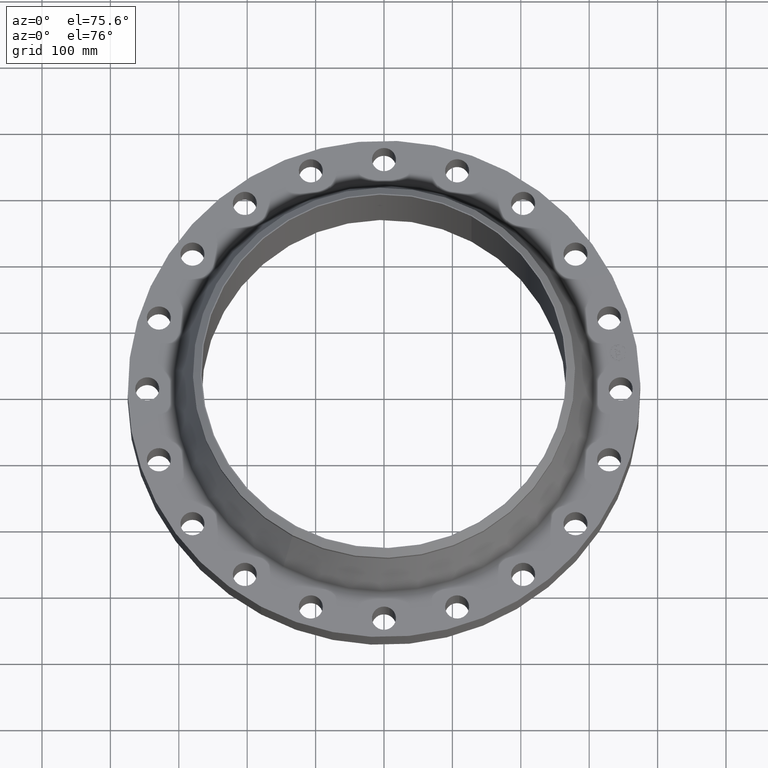
[diagram: clean part render]
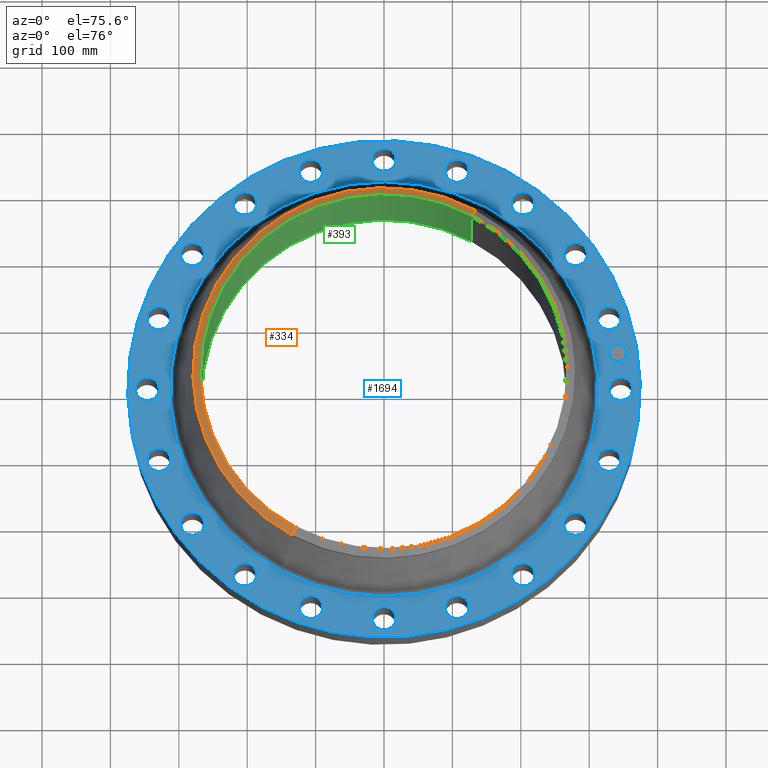
[diagram: same view with three faces highlighted in distinct colors, each labeled with its STEP entity id]
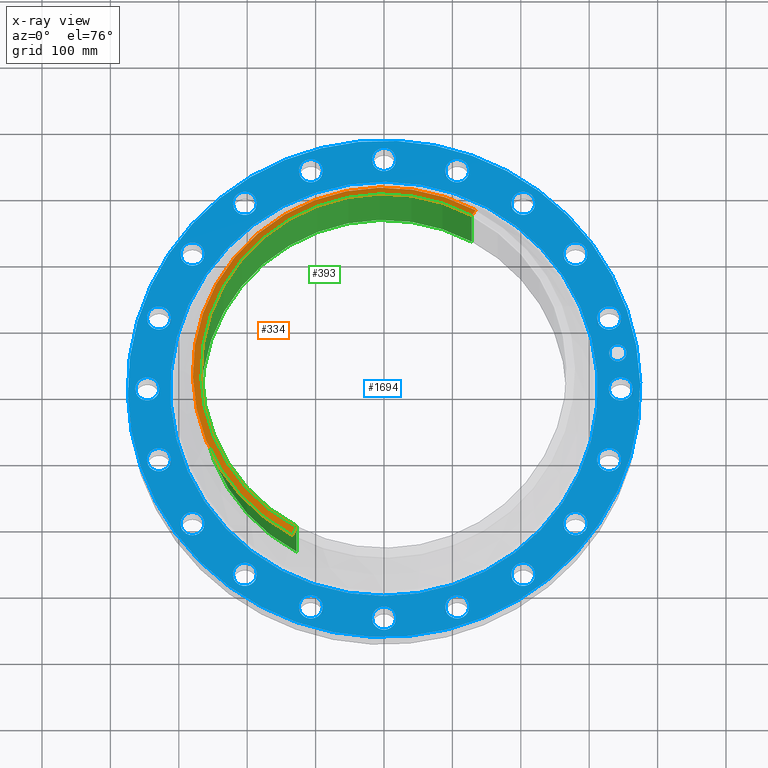
[diagram: x-ray of the same camera — body ghosted, the three highlighted faces saturated]
A machine part, auxiliary view with three faces highlighted in distinct colors.
The next image is the same camera in x-ray (body ghosted, the three faces saturated) — at least one of them is partly hidden behind the body in this view.
Their STEP definitions:

[orange] entity #334 — the highlighted conical surface has half-angle 52.5 deg.
#282=AXIS2_PLACEMENT_3D('Circle Axis2P3D',#280,#281,$) ;
#295=AXIS2_PLACEMENT_3D('Cone Axis2P3D',#292,#293,#294) ;
#325=AXIS2_PLACEMENT_3D('Circle Axis2P3D',#323,#324,$) ;
#258=CARTESIAN_POINT('Vertex',(-5.27368092467,-9.65340818083,5.54429444278)) ;
#265=CARTESIAN_POINT('Vertex',(5.27368092467,9.65340818083,5.54429444278)) ;
#280=CARTESIAN_POINT('Axis2P3D Location',(0.,0.,5.54429444278)) ;
#292=CARTESIAN_POINT('Axis2P3D Location',(0.,0.,5.88000000002)) ;
#297=CARTESIAN_POINT('Line Origine',(5.1688065881,9.46143699542,5.7121472214)) ;
#301=CARTESIAN_POINT('Vertex',(5.06393225153,9.26946581,5.88000000002)) ;
#308=CARTESIAN_POINT('Vertex',(-5.06393225153,-9.26946581,5.88000000002)) ;
#311=CARTESIAN_POINT('Line Origine',(-5.1688065881,-9.46143699542,5.7121472214)) ;
#323=CARTESIAN_POINT('Axis2P3D Location',(0.,0.,5.88000000002)) ;
#281=DIRECTION('Axis2P3D Direction',(0.,0.,-0.0393700787402)) ;
#293=DIRECTION('Axis2P3D Direction',(-0.,-0.,-0.0393700787402)) ;
#294=DIRECTION('Axis2P3D XDirection',(-0.0188750212049,-0.0345504945626,0.)) ;
#298=DIRECTION('Vector Direction',(0.014974561121,0.02741075027,-0.023966985394)) ;
#312=DIRECTION('Vector Direction',(-0.014974561121,-0.02741075027,-0.023966985394)) ;
#324=DIRECTION('Axis2P3D Direction',(0.,-0.,-0.0393700787402)) ;
#299=VECTOR('Line Direction',#298,0.0393700787402) ;
#313=VECTOR('Line Direction',#312,0.0393700787402) ;
#329=ORIENTED_EDGE('',*,*,#315,.F.) ;
#330=ORIENTED_EDGE('',*,*,#327,.T.) ;
#331=ORIENTED_EDGE('',*,*,#303,.T.) ;
#332=ORIENTED_EDGE('',*,*,#284,.F.) ;
#334=ADVANCED_FACE('PartBody',(#333),#296,.T.) ;
#283=CIRCLE('generated circle',#282,11.) ;
#326=CIRCLE('generated circle',#325,10.5625) ;
#296=CONICAL_SURFACE('Cone',#295,10.5625,0.916297857297) ;
#284=EDGE_CURVE('',#259,#266,#283,.T.) ;
#303=EDGE_CURVE('',#302,#266,#300,.T.) ;
#315=EDGE_CURVE('',#309,#259,#314,.T.) ;
#327=EDGE_CURVE('',#309,#302,#326,.T.) ;
#328=EDGE_LOOP('',(#329,#330,#331,#332)) ;
#333=FACE_OUTER_BOUND('',#328,.T.) ;
#300=LINE('Line',#297,#299) ;
#314=LINE('Line',#311,#313) ;
#259=VERTEX_POINT('',#258) ;
#266=VERTEX_POINT('',#265) ;
#302=VERTEX_POINT('',#301) ;
#309=VERTEX_POINT('',#308) ;

[blue] entity #1694 — the highlighted planar face has unit normal (0, 0, -1).
#65=AXIS2_PLACEMENT_3D('Circle Axis2P3D',#63,#64,$) ;
#82=AXIS2_PLACEMENT_3D('Circle Axis2P3D',#80,#81,$) ;
#115=AXIS2_PLACEMENT_3D('Circle Axis2P3D',#113,#114,$) ;
#139=AXIS2_PLACEMENT_3D('Circle Axis2P3D',#137,#138,$) ;
#156=AXIS2_PLACEMENT_3D('Circle Axis2P3D',#154,#155,$) ;
#191=AXIS2_PLACEMENT_3D('Circle Axis2P3D',#189,#190,$) ;
#787=AXIS2_PLACEMENT_3D('Circle Axis2P3D',#785,#786,$) ;
#799=AXIS2_PLACEMENT_3D('Circle Axis2P3D',#797,#798,$) ;
#830=AXIS2_PLACEMENT_3D('Circle Axis2P3D',#828,#829,$) ;
#842=AXIS2_PLACEMENT_3D('Circle Axis2P3D',#840,#841,$) ;
#873=AXIS2_PLACEMENT_3D('Circle Axis2P3D',#871,#872,$) ;
#885=AXIS2_PLACEMENT_3D('Circle Axis2P3D',#883,#884,$) ;
#916=AXIS2_PLACEMENT_3D('Circle Axis2P3D',#914,#915,$) ;
#928=AXIS2_PLACEMENT_3D('Circle Axis2P3D',#926,#927,$) ;
#959=AXIS2_PLACEMENT_3D('Circle Axis2P3D',#957,#958,$) ;
#971=AXIS2_PLACEMENT_3D('Circle Axis2P3D',#969,#970,$) ;
#1002=AXIS2_PLACEMENT_3D('Circle Axis2P3D',#1000,#1001,$) ;
#1014=AXIS2_PLACEMENT_3D('Circle Axis2P3D',#1012,#1013,$) ;
#1045=AXIS2_PLACEMENT_3D('Circle Axis2P3D',#1043,#1044,$) ;
#1057=AXIS2_PLACEMENT_3D('Circle Axis2P3D',#1055,#1056,$) ;
#1088=AXIS2_PLACEMENT_3D('Circle Axis2P3D',#1086,#1087,$) ;
#1100=AXIS2_PLACEMENT_3D('Circle Axis2P3D',#1098,#1099,$) ;
#1131=AXIS2_PLACEMENT_3D('Circle Axis2P3D',#1129,#1130,$) ;
#1143=AXIS2_PLACEMENT_3D('Circle Axis2P3D',#1141,#1142,$) ;
#1174=AXIS2_PLACEMENT_3D('Circle Axis2P3D',#1172,#1173,$) ;
#1186=AXIS2_PLACEMENT_3D('Circle Axis2P3D',#1184,#1185,$) ;
#1217=AXIS2_PLACEMENT_3D('Circle Axis2P3D',#1215,#1216,$) ;
#1229=AXIS2_PLACEMENT_3D('Circle Axis2P3D',#1227,#1228,$) ;
#1260=AXIS2_PLACEMENT_3D('Circle Axis2P3D',#1258,#1259,$) ;
#1272=AXIS2_PLACEMENT_3D('Circle Axis2P3D',#1270,#1271,$) ;
#1303=AXIS2_PLACEMENT_3D('Circle Axis2P3D',#1301,#1302,$) ;
#1315=AXIS2_PLACEMENT_3D('Circle Axis2P3D',#1313,#1314,$) ;
#1346=AXIS2_PLACEMENT_3D('Circle Axis2P3D',#1344,#1345,$) ;
#1358=AXIS2_PLACEMENT_3D('Circle Axis2P3D',#1356,#1357,$) ;
#1389=AXIS2_PLACEMENT_3D('Circle Axis2P3D',#1387,#1388,$) ;
#1401=AXIS2_PLACEMENT_3D('Circle Axis2P3D',#1399,#1400,$) ;
#1432=AXIS2_PLACEMENT_3D('Circle Axis2P3D',#1430,#1431,$) ;
#1444=AXIS2_PLACEMENT_3D('Circle Axis2P3D',#1442,#1443,$) ;
#1475=AXIS2_PLACEMENT_3D('Circle Axis2P3D',#1473,#1474,$) ;
#1487=AXIS2_PLACEMENT_3D('Circle Axis2P3D',#1485,#1486,$) ;
#1518=AXIS2_PLACEMENT_3D('Circle Axis2P3D',#1516,#1517,$) ;
#1530=AXIS2_PLACEMENT_3D('Circle Axis2P3D',#1528,#1529,$) ;
#1561=AXIS2_PLACEMENT_3D('Circle Axis2P3D',#1559,#1560,$) ;
#1573=AXIS2_PLACEMENT_3D('Circle Axis2P3D',#1571,#1572,$) ;
#1586=AXIS2_PLACEMENT_3D('Plane Axis2P3D',#1583,#1584,#1585) ;
#1678=AXIS2_PLACEMENT_3D('Circle Axis2P3D',#1676,#1677,$) ;
#1687=AXIS2_PLACEMENT_3D('Circle Axis2P3D',#1685,#1686,$) ;
#46=CARTESIAN_POINT('Vertex',(13.0194680323,0.330803621638,1.81000000001)) ;
#60=CARTESIAN_POINT('Vertex',(14.2305319678,-0.330803621638,1.81000000001)) ;
#63=CARTESIAN_POINT('Axis2P3D Location',(13.6250000001,0.,1.81000000001)) ;
#80=CARTESIAN_POINT('Axis2P3D Location',(13.6250000001,0.,1.81000000001)) ;
#110=CARTESIAN_POINT('Vertex',(-7.07152669444,-12.9443427879,1.81000000001)) ;
#113=CARTESIAN_POINT('Axis2P3D Location',(0.,0.,1.81000000001)) ;
#117=CARTESIAN_POINT('Vertex',(7.07152669444,12.9443427879,1.81000000001)) ;
#137=CARTESIAN_POINT('Axis2P3D Location',(0.,0.,1.81000000001)) ;
#154=CARTESIAN_POINT('Axis2P3D Location',(0.,0.,1.81000000001)) ;
#158=CARTESIAN_POINT('Vertex',(5.90039045652,10.800592284,1.81000000001)) ;
#160=CARTESIAN_POINT('Vertex',(-5.90039045652,-10.800592284,1.81000000001)) ;
#189=CARTESIAN_POINT('Axis2P3D Location',(0.,0.,1.81000000001)) ;
#775=CARTESIAN_POINT('Vertex',(-12.4844738517,3.70862393974,1.81000000001)) ;
#782=CARTESIAN_POINT('Vertex',(-13.4318162174,4.71208915701,1.81000000001)) ;
#785=CARTESIAN_POINT('Axis2P3D Location',(-12.9581450346,4.21035654838,1.81000000001)) ;
#797=CARTESIAN_POINT('Axis2P3D Location',(-12.9581450346,4.21035654838,1.81000000001)) ;
#818=CARTESIAN_POINT('Vertex',(10.7274123861,-7.3850255504,1.81000000001)) ;
#825=CARTESIAN_POINT('Vertex',(11.3183007107,-8.63212257463,1.81000000001)) ;
#828=CARTESIAN_POINT('Axis2P3D Location',(11.0228565484,-8.00857406252,1.81000000001)) ;
#840=CARTESIAN_POINT('Axis2P3D Location',(11.0228565484,-8.00857406252,1.81000000001)) ;
#861=CARTESIAN_POINT('Vertex',(-10.7274123861,7.3850255504,1.81000000001)) ;
#868=CARTESIAN_POINT('Vertex',(-11.3183007107,8.63212257463,1.81000000001)) ;
#871=CARTESIAN_POINT('Axis2P3D Location',(-11.0228565484,8.00857406252,1.81000000001)) ;
#883=CARTESIAN_POINT('Axis2P3D Location',(-11.0228565484,8.00857406252,1.81000000001)) ;
#904=CARTESIAN_POINT('Vertex',(7.92027705381,-10.3385294057,1.81000000001)) ;
#911=CARTESIAN_POINT('Vertex',(8.09687107122,-11.7071836911,1.81000000001)) ;
#914=CARTESIAN_POINT('Axis2P3D Location',(8.00857406252,-11.0228565484,1.81000000001)) ;
#926=CARTESIAN_POINT('Axis2P3D Location',(8.00857406252,-11.0228565484,1.81000000001)) ;
#947=CARTESIAN_POINT('Vertex',(-7.92027705381,10.3385294057,1.81000000001)) ;
#954=CARTESIAN_POINT('Vertex',(-8.09687107122,11.7071836911,1.81000000001)) ;
#957=CARTESIAN_POINT('Axis2P3D Location',(-8.00857406252,11.0228565484,1.81000000001)) ;
#969=CARTESIAN_POINT('Axis2P3D Location',(-8.00857406252,11.0228565484,1.81000000001)) ;
#990=CARTESIAN_POINT('Vertex',(4.33784981969,-12.28002597,1.81000000001)) ;
#997=CARTESIAN_POINT('Vertex',(4.08286327706,-13.6362640992,1.81000000001)) ;
#1000=CARTESIAN_POINT('Axis2P3D Location',(4.21035654838,-12.9581450346,1.81000000001)) ;
#1012=CARTESIAN_POINT('Axis2P3D Location',(4.21035654838,-12.9581450346,1.81000000001)) ;
#1033=CARTESIAN_POINT('Vertex',(-4.33784981969,12.28002597,1.81000000001)) ;
#1040=CARTESIAN_POINT('Vertex',(-4.08286327706,13.6362640992,1.81000000001)) ;
#1043=CARTESIAN_POINT('Axis2P3D Location',(-4.21035654838,12.9581450346,1.81000000001)) ;
#1055=CARTESIAN_POINT('Axis2P3D Location',(-4.21035654838,12.9581450346,1.81000000001)) ;
#1076=CARTESIAN_POINT('Vertex',(0.330803621638,-13.0194680323,1.81000000001)) ;
#1083=CARTESIAN_POINT('Vertex',(-0.330803621638,-14.2305319678,1.81000000001)) ;
#1086=CARTESIAN_POINT('Axis2P3D Location',(3.85964837404E-015,-13.6250000001,1.81000000001)) ;
#1098=CARTESIAN_POINT('Axis2P3D Location',(3.85964837404E-015,-13.6250000001,1.81000000001)) ;
#1119=CARTESIAN_POINT('Vertex',(-0.330803621638,13.0194680323,1.81000000001)) ;
#1126=CARTESIAN_POINT('Vertex',(0.330803621638,14.2305319678,1.81000000001)) ;
#1129=CARTESIAN_POINT('Axis2P3D Location',(-1.46043028642E-014,13.6250000001,1.81000000001)) ;
#1141=CARTESIAN_POINT('Axis2P3D Location',(-1.46043028642E-014,13.6250000001,1.81000000001)) ;
#1162=CARTESIAN_POINT('Vertex',(-3.70862393974,-12.4844738517,1.81000000001)) ;
#1169=CARTESIAN_POINT('Vertex',(-4.71208915701,-13.4318162174,1.81000000001)) ;
#1172=CARTESIAN_POINT('Axis2P3D Location',(-4.21035654838,-12.9581450346,1.81000000001)) ;
#1184=CARTESIAN_POINT('Axis2P3D Location',(-4.21035654838,-12.9581450346,1.81000000001)) ;
#1205=CARTESIAN_POINT('Vertex',(3.70862393974,12.4844738517,1.81000000001)) ;
#1212=CARTESIAN_POINT('Vertex',(4.71208915701,13.4318162174,1.81000000001)) ;
#1215=CARTESIAN_POINT('Axis2P3D Location',(4.21035654838,12.9581450346,1.81000000001)) ;
#1227=CARTESIAN_POINT('Axis2P3D Location',(4.21035654838,12.9581450346,1.81000000001)) ;
#1248=CARTESIAN_POINT('Vertex',(-7.3850255504,-10.7274123861,1.81000000001)) ;
#1255=CARTESIAN_POINT('Vertex',(-8.63212257463,-11.3183007107,1.81000000001)) ;
#1258=CARTESIAN_POINT('Axis2P3D Location',(-8.00857406252,-11.0228565484,1.81000000001)) ;
#1270=CARTESIAN_POINT('Axis2P3D Location',(-8.00857406252,-11.0228565484,1.81000000001)) ;
#1291=CARTESIAN_POINT('Vertex',(7.3850255504,10.7274123861,1.81000000001)) ;
#1298=CARTESIAN_POINT('Vertex',(8.63212257463,11.3183007107,1.81000000001)) ;
#1301=CARTESIAN_POINT('Axis2P3D Location',(8.00857406252,11.0228565484,1.81000000001)) ;
#1313=CARTESIAN_POINT('Axis2P3D Location',(8.00857406252,11.0228565484,1.81000000001)) ;
#1334=CARTESIAN_POINT('Vertex',(-10.3385294057,-7.92027705381,1.81000000001)) ;
#1341=CARTESIAN_POINT('Vertex',(-11.7071836911,-8.09687107122,1.81000000001)) ;
#1344=CARTESIAN_POINT('Axis2P3D Location',(-11.0228565484,-8.00857406252,1.81000000001)) ;
#1356=CARTESIAN_POINT('Axis2P3D Location',(-11.0228565484,-8.00857406252,1.81000000001)) ;
#1377=CARTESIAN_POINT('Vertex',(10.3385294057,7.92027705381,1.81000000001)) ;
#1384=CARTESIAN_POINT('Vertex',(11.7071836911,8.09687107122,1.81000000001)) ;
#1387=CARTESIAN_POINT('Axis2P3D Location',(11.0228565484,8.00857406252,1.81000000001)) ;
#1399=CARTESIAN_POINT('Axis2P3D Location',(11.0228565484,8.00857406252,1.81000000001)) ;
#1420=CARTESIAN_POINT('Vertex',(-12.28002597,-4.33784981969,1.81000000001)) ;
#1427=CARTESIAN_POINT('Vertex',(-13.6362640992,-4.08286327706,1.81000000001)) ;
#1430=CARTESIAN_POINT('Axis2P3D Location',(-12.9581450346,-4.21035654838,1.81000000001)) ;
#1442=CARTESIAN_POINT('Axis2P3D Location',(-12.9581450346,-4.21035654838,1.81000000001)) ;
#1463=CARTESIAN_POINT('Vertex',(12.28002597,4.33784981969,1.81000000001)) ;
#1470=CARTESIAN_POINT('Vertex',(13.6362640992,4.08286327706,1.81000000001)) ;
#1473=CARTESIAN_POINT('Axis2P3D Location',(12.9581450346,4.21035654838,1.81000000001)) ;
#1485=CARTESIAN_POINT('Axis2P3D Location',(12.9581450346,4.21035654838,1.81000000001)) ;
#1506=CARTESIAN_POINT('Vertex',(-13.0194680323,-0.330803621638,1.81000000001)) ;
#1513=CARTESIAN_POINT('Vertex',(-14.2305319678,0.330803621638,1.81000000001)) ;
#1516=CARTESIAN_POINT('Axis2P3D Location',(-13.6250000001,-7.71929674808E-015,1.81000000001)) ;
#1528=CARTESIAN_POINT('Axis2P3D Location',(-13.6250000001,-7.71929674808E-015,1.81000000001)) ;
#1549=CARTESIAN_POINT('Vertex',(12.4844738517,-3.70862393974,1.81000000001)) ;
#1556=CARTESIAN_POINT('Vertex',(13.4318162174,-4.71208915701,1.81000000001)) ;
#1559=CARTESIAN_POINT('Axis2P3D Location',(12.9581450346,-4.21035654838,1.81000000001)) ;
#1571=CARTESIAN_POINT('Axis2P3D Location',(12.9581450346,-4.21035654838,1.81000000001)) ;
#1583=CARTESIAN_POINT('Axis2P3D Location',(0.,14.7500000001,1.81000000001)) ;
#1676=CARTESIAN_POINT('Axis2P3D Location',(13.4572536407,2.13141958618,1.81000000001)) ;
#1680=CARTESIAN_POINT('Vertex',(13.3790365874,2.62526262459,1.81000000001)) ;
#1682=CARTESIAN_POINT('Vertex',(13.5354706939,1.63757654778,1.81000000001)) ;
#1685=CARTESIAN_POINT('Axis2P3D Location',(13.4572536407,2.13141958618,1.81000000001)) ;
#64=DIRECTION('Axis2P3D Direction',(0.,-0.,-0.0393700787402)) ;
#81=DIRECTION('Axis2P3D Direction',(0.,-0.,-0.0393700787402)) ;
#114=DIRECTION('Axis2P3D Direction',(0.,0.,-0.0393700787402)) ;
#138=DIRECTION('Axis2P3D Direction',(0.,0.,-0.0393700787402)) ;
#155=DIRECTION('Axis2P3D Direction',(0.,0.,-0.0393700787402)) ;
#190=DIRECTION('Axis2P3D Direction',(0.,0.,-0.0393700787402)) ;
#786=DIRECTION('Axis2P3D Direction',(0.,0.,-0.0393700787402)) ;
#798=DIRECTION('Axis2P3D Direction',(0.,0.,-0.0393700787402)) ;
#829=DIRECTION('Axis2P3D Direction',(0.,-0.,-0.0393700787402)) ;
#841=DIRECTION('Axis2P3D Direction',(0.,-0.,-0.0393700787402)) ;
#872=DIRECTION('Axis2P3D Direction',(0.,0.,-0.0393700787402)) ;
#884=DIRECTION('Axis2P3D Direction',(0.,0.,-0.0393700787402)) ;
#915=DIRECTION('Axis2P3D Direction',(0.,-0.,-0.0393700787402)) ;
#927=DIRECTION('Axis2P3D Direction',(0.,-0.,-0.0393700787402)) ;
#958=DIRECTION('Axis2P3D Direction',(0.,0.,-0.0393700787402)) ;
#970=DIRECTION('Axis2P3D Direction',(0.,0.,-0.0393700787402)) ;
#1001=DIRECTION('Axis2P3D Direction',(0.,-0.,-0.0393700787402)) ;
#1013=DIRECTION('Axis2P3D Direction',(0.,-0.,-0.0393700787402)) ;
#1044=DIRECTION('Axis2P3D Direction',(0.,0.,-0.0393700787402)) ;
#1056=DIRECTION('Axis2P3D Direction',(0.,0.,-0.0393700787402)) ;
#1087=DIRECTION('Axis2P3D Direction',(0.,-0.,-0.0393700787402)) ;
#1099=DIRECTION('Axis2P3D Direction',(0.,-0.,-0.0393700787402)) ;
#1130=DIRECTION('Axis2P3D Direction',(0.,0.,-0.0393700787402)) ;
#1142=DIRECTION('Axis2P3D Direction',(0.,0.,-0.0393700787402)) ;
#1173=DIRECTION('Axis2P3D Direction',(-0.,0.,-0.0393700787402)) ;
#1185=DIRECTION('Axis2P3D Direction',(-0.,0.,-0.0393700787402)) ;
#1216=DIRECTION('Axis2P3D Direction',(0.,0.,-0.0393700787402)) ;
#1228=DIRECTION('Axis2P3D Direction',(0.,0.,-0.0393700787402)) ;
#1259=DIRECTION('Axis2P3D Direction',(-0.,0.,-0.0393700787402)) ;
#1271=DIRECTION('Axis2P3D Direction',(-0.,0.,-0.0393700787402)) ;
#1302=DIRECTION('Axis2P3D Direction',(0.,0.,-0.0393700787402)) ;
#1314=DIRECTION('Axis2P3D Direction',(0.,0.,-0.0393700787402)) ;
#1345=DIRECTION('Axis2P3D Direction',(-0.,0.,-0.0393700787402)) ;
#1357=DIRECTION('Axis2P3D Direction',(-0.,0.,-0.0393700787402)) ;
#1388=DIRECTION('Axis2P3D Direction',(0.,0.,-0.0393700787402)) ;
#1400=DIRECTION('Axis2P3D Direction',(0.,0.,-0.0393700787402)) ;
#1431=DIRECTION('Axis2P3D Direction',(-0.,0.,-0.0393700787402)) ;
#1443=DIRECTION('Axis2P3D Direction',(-0.,0.,-0.0393700787402)) ;
#1474=DIRECTION('Axis2P3D Direction',(0.,0.,-0.0393700787402)) ;
#1486=DIRECTION('Axis2P3D Direction',(0.,0.,-0.0393700787402)) ;
#1517=DIRECTION('Axis2P3D Direction',(-0.,0.,-0.0393700787402)) ;
#1529=DIRECTION('Axis2P3D Direction',(-0.,0.,-0.0393700787402)) ;
#1560=DIRECTION('Axis2P3D Direction',(0.,-0.,-0.0393700787402)) ;
#1572=DIRECTION('Axis2P3D Direction',(0.,-0.,-0.0393700787402)) ;
#1584=DIRECTION('Axis2P3D Direction',(0.,0.,-0.0393700787402)) ;
#1585=DIRECTION('Axis2P3D XDirection',(0.0393700787402,0.,0.)) ;
#1677=DIRECTION('Axis2P3D Direction',(0.,0.,-0.0393700787402)) ;
#1686=DIRECTION('Axis2P3D Direction',(0.,0.,-0.0393700787402)) ;
#1589=ORIENTED_EDGE('',*,*,#141,.F.) ;
#1590=ORIENTED_EDGE('',*,*,#119,.F.) ;
#1593=ORIENTED_EDGE('',*,*,#67,.T.) ;
#1594=ORIENTED_EDGE('',*,*,#84,.T.) ;
#1597=ORIENTED_EDGE('',*,*,#193,.T.) ;
#1598=ORIENTED_EDGE('',*,*,#162,.T.) ;
#1601=ORIENTED_EDGE('',*,*,#1575,.T.) ;
#1602=ORIENTED_EDGE('',*,*,#1563,.T.) ;
#1605=ORIENTED_EDGE('',*,*,#844,.T.) ;
#1606=ORIENTED_EDGE('',*,*,#832,.T.) ;
#1609=ORIENTED_EDGE('',*,*,#930,.T.) ;
#1610=ORIENTED_EDGE('',*,*,#918,.T.) ;
#1613=ORIENTED_EDGE('',*,*,#1016,.T.) ;
#1614=ORIENTED_EDGE('',*,*,#1004,.T.) ;
#1617=ORIENTED_EDGE('',*,*,#1102,.T.) ;
#1618=ORIENTED_EDGE('',*,*,#1090,.T.) ;
#1621=ORIENTED_EDGE('',*,*,#1188,.T.) ;
#1622=ORIENTED_EDGE('',*,*,#1176,.T.) ;
#1625=ORIENTED_EDGE('',*,*,#1274,.T.) ;
#1626=ORIENTED_EDGE('',*,*,#1262,.T.) ;
#1629=ORIENTED_EDGE('',*,*,#1360,.T.) ;
#1630=ORIENTED_EDGE('',*,*,#1348,.T.) ;
#1633=ORIENTED_EDGE('',*,*,#1446,.T.) ;
#1634=ORIENTED_EDGE('',*,*,#1434,.T.) ;
#1637=ORIENTED_EDGE('',*,*,#1532,.T.) ;
#1638=ORIENTED_EDGE('',*,*,#1520,.T.) ;
#1641=ORIENTED_EDGE('',*,*,#801,.T.) ;
#1642=ORIENTED_EDGE('',*,*,#789,.T.) ;
#1645=ORIENTED_EDGE('',*,*,#887,.T.) ;
#1646=ORIENTED_EDGE('',*,*,#875,.T.) ;
#1649=ORIENTED_EDGE('',*,*,#973,.T.) ;
#1650=ORIENTED_EDGE('',*,*,#961,.T.) ;
#1653=ORIENTED_EDGE('',*,*,#1059,.T.) ;
#1654=ORIENTED_EDGE('',*,*,#1047,.T.) ;
#1657=ORIENTED_EDGE('',*,*,#1145,.T.) ;
#1658=ORIENTED_EDGE('',*,*,#1133,.T.) ;
#1661=ORIENTED_EDGE('',*,*,#1231,.T.) ;
#1662=ORIENTED_EDGE('',*,*,#1219,.T.) ;
#1665=ORIENTED_EDGE('',*,*,#1317,.T.) ;
#1666=ORIENTED_EDGE('',*,*,#1305,.T.) ;
#1669=ORIENTED_EDGE('',*,*,#1403,.T.) ;
#1670=ORIENTED_EDGE('',*,*,#1391,.T.) ;
#1673=ORIENTED_EDGE('',*,*,#1489,.T.) ;
#1674=ORIENTED_EDGE('',*,*,#1477,.T.) ;
#1691=ORIENTED_EDGE('',*,*,#1684,.T.) ;
#1692=ORIENTED_EDGE('',*,*,#1689,.T.) ;
#1595=FACE_BOUND('',#1592,.T.) ;
#1599=FACE_BOUND('',#1596,.T.) ;
#1603=FACE_BOUND('',#1600,.T.) ;
#1607=FACE_BOUND('',#1604,.T.) ;
#1611=FACE_BOUND('',#1608,.T.) ;
#1615=FACE_BOUND('',#1612,.T.) ;
#1619=FACE_BOUND('',#1616,.T.) ;
#1623=FACE_BOUND('',#1620,.T.) ;
#1627=FACE_BOUND('',#1624,.T.) ;
#1631=FACE_BOUND('',#1628,.T.) ;
#1635=FACE_BOUND('',#1632,.T.) ;
#1639=FACE_BOUND('',#1636,.T.) ;
#1643=FACE_BOUND('',#1640,.T.) ;
#1647=FACE_BOUND('',#1644,.T.) ;
#1651=FACE_BOUND('',#1648,.T.) ;
#1655=FACE_BOUND('',#1652,.T.) ;
#1659=FACE_BOUND('',#1656,.T.) ;
#1663=FACE_BOUND('',#1660,.T.) ;
#1667=FACE_BOUND('',#1664,.T.) ;
#1671=FACE_BOUND('',#1668,.T.) ;
#1675=FACE_BOUND('',#1672,.T.) ;
#1693=FACE_BOUND('',#1690,.T.) ;
#1694=ADVANCED_FACE('PartBody',(#1591,#1595,#1599,#1603,#1607,#1611,#1615,#1619,#1623,#1627,#1631,#1635,#1639,#1643,#1647,#1651,#1655,#1659,#1663,#1667,#1671,#1675,#1693),#1587,.F.) ;
#66=CIRCLE('generated circle',#65,0.690000000003) ;
#83=CIRCLE('generated circle',#82,0.690000000003) ;
#116=CIRCLE('generated circle',#115,14.7500000001) ;
#140=CIRCLE('generated circle',#139,14.7500000001) ;
#157=CIRCLE('generated circle',#156,12.3072093191) ;
#192=CIRCLE('generated circle',#191,12.3072093191) ;
#788=CIRCLE('generated circle',#787,0.690000000003) ;
#800=CIRCLE('generated circle',#799,0.690000000003) ;
#831=CIRCLE('generated circle',#830,0.690000000003) ;
#843=CIRCLE('generated circle',#842,0.690000000003) ;
#874=CIRCLE('generated circle',#873,0.690000000003) ;
#886=CIRCLE('generated circle',#885,0.690000000003) ;
#917=CIRCLE('generated circle',#916,0.690000000003) ;
#929=CIRCLE('generated circle',#928,0.690000000003) ;
#960=CIRCLE('generated circle',#959,0.690000000003) ;
#972=CIRCLE('generated circle',#971,0.690000000003) ;
#1003=CIRCLE('generated circle',#1002,0.690000000003) ;
#1015=CIRCLE('generated circle',#1014,0.690000000003) ;
#1046=CIRCLE('generated circle',#1045,0.690000000003) ;
#1058=CIRCLE('generated circle',#1057,0.690000000003) ;
#1089=CIRCLE('generated circle',#1088,0.690000000003) ;
#1101=CIRCLE('generated circle',#1100,0.690000000003) ;
#1132=CIRCLE('generated circle',#1131,0.690000000003) ;
#1144=CIRCLE('generated circle',#1143,0.690000000003) ;
#1175=CIRCLE('generated circle',#1174,0.690000000003) ;
#1187=CIRCLE('generated circle',#1186,0.690000000003) ;
#1218=CIRCLE('generated circle',#1217,0.690000000003) ;
#1230=CIRCLE('generated circle',#1229,0.690000000003) ;
#1261=CIRCLE('generated circle',#1260,0.690000000003) ;
#1273=CIRCLE('generated circle',#1272,0.690000000003) ;
#1304=CIRCLE('generated circle',#1303,0.690000000003) ;
#1316=CIRCLE('generated circle',#1315,0.690000000003) ;
#1347=CIRCLE('generated circle',#1346,0.690000000003) ;
#1359=CIRCLE('generated circle',#1358,0.690000000003) ;
#1390=CIRCLE('generated circle',#1389,0.690000000003) ;
#1402=CIRCLE('generated circle',#1401,0.690000000003) ;
#1433=CIRCLE('generated circle',#1432,0.690000000003) ;
#1445=CIRCLE('generated circle',#1444,0.690000000003) ;
#1476=CIRCLE('generated circle',#1475,0.690000000003) ;
#1488=CIRCLE('generated circle',#1487,0.690000000003) ;
#1519=CIRCLE('generated circle',#1518,0.690000000003) ;
#1531=CIRCLE('generated circle',#1530,0.690000000003) ;
#1562=CIRCLE('generated circle',#1561,0.690000000003) ;
#1574=CIRCLE('generated circle',#1573,0.690000000003) ;
#1679=CIRCLE('generated circle',#1678,0.499998853999) ;
#1688=CIRCLE('generated circle',#1687,0.499998853999) ;
#67=EDGE_CURVE('',#47,#61,#66,.T.) ;
#84=EDGE_CURVE('',#61,#47,#83,.T.) ;
#119=EDGE_CURVE('',#111,#118,#116,.T.) ;
#141=EDGE_CURVE('',#118,#111,#140,.T.) ;
#162=EDGE_CURVE('',#159,#161,#157,.T.) ;
#193=EDGE_CURVE('',#161,#159,#192,.T.) ;
#789=EDGE_CURVE('',#776,#783,#788,.T.) ;
#801=EDGE_CURVE('',#783,#776,#800,.T.) ;
#832=EDGE_CURVE('',#819,#826,#831,.T.) ;
#844=EDGE_CURVE('',#826,#819,#843,.T.) ;
#875=EDGE_CURVE('',#862,#869,#874,.T.) ;
#887=EDGE_CURVE('',#869,#862,#886,.T.) ;
#918=EDGE_CURVE('',#905,#912,#917,.T.) ;
#930=EDGE_CURVE('',#912,#905,#929,.T.) ;
#961=EDGE_CURVE('',#948,#955,#960,.T.) ;
#973=EDGE_CURVE('',#955,#948,#972,.T.) ;
#1004=EDGE_CURVE('',#991,#998,#1003,.T.) ;
#1016=EDGE_CURVE('',#998,#991,#1015,.T.) ;
#1047=EDGE_CURVE('',#1034,#1041,#1046,.T.) ;
#1059=EDGE_CURVE('',#1041,#1034,#1058,.T.) ;
#1090=EDGE_CURVE('',#1077,#1084,#1089,.T.) ;
#1102=EDGE_CURVE('',#1084,#1077,#1101,.T.) ;
#1133=EDGE_CURVE('',#1120,#1127,#1132,.T.) ;
#1145=EDGE_CURVE('',#1127,#1120,#1144,.T.) ;
#1176=EDGE_CURVE('',#1163,#1170,#1175,.T.) ;
#1188=EDGE_CURVE('',#1170,#1163,#1187,.T.) ;
#1219=EDGE_CURVE('',#1206,#1213,#1218,.T.) ;
#1231=EDGE_CURVE('',#1213,#1206,#1230,.T.) ;
#1262=EDGE_CURVE('',#1249,#1256,#1261,.T.) ;
#1274=EDGE_CURVE('',#1256,#1249,#1273,.T.) ;
#1305=EDGE_CURVE('',#1292,#1299,#1304,.T.) ;
#1317=EDGE_CURVE('',#1299,#1292,#1316,.T.) ;
#1348=EDGE_CURVE('',#1335,#1342,#1347,.T.) ;
#1360=EDGE_CURVE('',#1342,#1335,#1359,.T.) ;
#1391=EDGE_CURVE('',#1378,#1385,#1390,.T.) ;
#1403=EDGE_CURVE('',#1385,#1378,#1402,.T.) ;
#1434=EDGE_CURVE('',#1421,#1428,#1433,.T.) ;
#1446=EDGE_CURVE('',#1428,#1421,#1445,.T.) ;
#1477=EDGE_CURVE('',#1464,#1471,#1476,.T.) ;
#1489=EDGE_CURVE('',#1471,#1464,#1488,.T.) ;
#1520=EDGE_CURVE('',#1507,#1514,#1519,.T.) ;
#1532=EDGE_CURVE('',#1514,#1507,#1531,.T.) ;
#1563=EDGE_CURVE('',#1550,#1557,#1562,.T.) ;
#1575=EDGE_CURVE('',#1557,#1550,#1574,.T.) ;
#1684=EDGE_CURVE('',#1681,#1683,#1679,.T.) ;
#1689=EDGE_CURVE('',#1683,#1681,#1688,.T.) ;
#1588=EDGE_LOOP('',(#1589,#1590)) ;
#1592=EDGE_LOOP('',(#1593,#1594)) ;
#1596=EDGE_LOOP('',(#1597,#1598)) ;
#1600=EDGE_LOOP('',(#1601,#1602)) ;
#1604=EDGE_LOOP('',(#1605,#1606)) ;
#1608=EDGE_LOOP('',(#1609,#1610)) ;
#1612=EDGE_LOOP('',(#1613,#1614)) ;
#1616=EDGE_LOOP('',(#1617,#1618)) ;
#1620=EDGE_LOOP('',(#1621,#1622)) ;
#1624=EDGE_LOOP('',(#1625,#1626)) ;
#1628=EDGE_LOOP('',(#1629,#1630)) ;
#1632=EDGE_LOOP('',(#1633,#1634)) ;
#1636=EDGE_LOOP('',(#1637,#1638)) ;
#1640=EDGE_LOOP('',(#1641,#1642)) ;
#1644=EDGE_LOOP('',(#1645,#1646)) ;
#1648=EDGE_LOOP('',(#1649,#1650)) ;
#1652=EDGE_LOOP('',(#1653,#1654)) ;
#1656=EDGE_LOOP('',(#1657,#1658)) ;
#1660=EDGE_LOOP('',(#1661,#1662)) ;
#1664=EDGE_LOOP('',(#1665,#1666)) ;
#1668=EDGE_LOOP('',(#1669,#1670)) ;
#1672=EDGE_LOOP('',(#1673,#1674)) ;
#1690=EDGE_LOOP('',(#1691,#1692)) ;
#1591=FACE_OUTER_BOUND('',#1588,.T.) ;
#1587=PLANE('',#1586) ;
#47=VERTEX_POINT('',#46) ;
#61=VERTEX_POINT('',#60) ;
#111=VERTEX_POINT('',#110) ;
#118=VERTEX_POINT('',#117) ;
#159=VERTEX_POINT('',#158) ;
#161=VERTEX_POINT('',#160) ;
#776=VERTEX_POINT('',#775) ;
#783=VERTEX_POINT('',#782) ;
#819=VERTEX_POINT('',#818) ;
#826=VERTEX_POINT('',#825) ;
#862=VERTEX_POINT('',#861) ;
#869=VERTEX_POINT('',#868) ;
#905=VERTEX_POINT('',#904) ;
#912=VERTEX_POINT('',#911) ;
#948=VERTEX_POINT('',#947) ;
#955=VERTEX_POINT('',#954) ;
#991=VERTEX_POINT('',#990) ;
#998=VERTEX_POINT('',#997) ;
#1034=VERTEX_POINT('',#1033) ;
#1041=VERTEX_POINT('',#1040) ;
#1077=VERTEX_POINT('',#1076) ;
#1084=VERTEX_POINT('',#1083) ;
#1120=VERTEX_POINT('',#1119) ;
#1127=VERTEX_POINT('',#1126) ;
#1163=VERTEX_POINT('',#1162) ;
#1170=VERTEX_POINT('',#1169) ;
#1206=VERTEX_POINT('',#1205) ;
#1213=VERTEX_POINT('',#1212) ;
#1249=VERTEX_POINT('',#1248) ;
#1256=VERTEX_POINT('',#1255) ;
#1292=VERTEX_POINT('',#1291) ;
#1299=VERTEX_POINT('',#1298) ;
#1335=VERTEX_POINT('',#1334) ;
#1342=VERTEX_POINT('',#1341) ;
#1378=VERTEX_POINT('',#1377) ;
#1385=VERTEX_POINT('',#1384) ;
#1421=VERTEX_POINT('',#1420) ;
#1428=VERTEX_POINT('',#1427) ;
#1464=VERTEX_POINT('',#1463) ;
#1471=VERTEX_POINT('',#1470) ;
#1507=VERTEX_POINT('',#1506) ;
#1514=VERTEX_POINT('',#1513) ;
#1550=VERTEX_POINT('',#1549) ;
#1557=VERTEX_POINT('',#1556) ;
#1681=VERTEX_POINT('',#1680) ;
#1683=VERTEX_POINT('',#1682) ;

[green] entity #393 — the highlighted cylindrical surface (partial cylindrical patch) has radius 266.7 mm, axis along (0, 0, -1).
#346=AXIS2_PLACEMENT_3D('Circle Axis2P3D',#344,#345,$) ;
#366=AXIS2_PLACEMENT_3D('Cylinder Axis2P3D',#363,#364,#365) ;
#377=AXIS2_PLACEMENT_3D('Circle Axis2P3D',#375,#376,$) ;
#344=CARTESIAN_POINT('Axis2P3D Location',(0.,0.,5.88000000002)) ;
#348=CARTESIAN_POINT('Vertex',(-5.03396815536,-9.21461689989,5.88000000002)) ;
#350=CARTESIAN_POINT('Vertex',(5.03396815536,9.21461689989,5.88000000002)) ;
#363=CARTESIAN_POINT('Axis2P3D Location',(0.,0.,2.99000000001)) ;
#368=CARTESIAN_POINT('Line Origine',(-5.03396815536,-9.21461689989,2.94000000001)) ;
#372=CARTESIAN_POINT('Vertex',(-5.03396815536,-9.21461689989,-8.39223703654E-014)) ;
#375=CARTESIAN_POINT('Axis2P3D Location',(0.,0.,-8.50413353036E-014)) ;
#379=CARTESIAN_POINT('Vertex',(5.03396815536,9.21461689989,-8.39223703654E-014)) ;
#382=CARTESIAN_POINT('Line Origine',(5.03396815536,9.21461689989,2.94000000001)) ;
#345=DIRECTION('Axis2P3D Direction',(0.,-0.,-0.0393700787402)) ;
#364=DIRECTION('Axis2P3D Direction',(0.,0.,-0.0393700787402)) ;
#365=DIRECTION('Axis2P3D XDirection',(0.0188750212049,0.0345504945626,0.)) ;
#369=DIRECTION('Vector Direction',(0.,0.,-0.0393700787402)) ;
#376=DIRECTION('Axis2P3D Direction',(0.,0.,-0.0393700787402)) ;
#383=DIRECTION('Vector Direction',(0.,0.,-0.0393700787402)) ;
#370=VECTOR('Line Direction',#369,0.0393700787402) ;
#384=VECTOR('Line Direction',#383,0.0393700787402) ;
#388=ORIENTED_EDGE('',*,*,#374,.T.) ;
#389=ORIENTED_EDGE('',*,*,#381,.T.) ;
#390=ORIENTED_EDGE('',*,*,#386,.F.) ;
#391=ORIENTED_EDGE('',*,*,#352,.F.) ;
#393=ADVANCED_FACE('PartBody',(#392),#367,.F.) ;
#347=CIRCLE('generated circle',#346,10.5) ;
#378=CIRCLE('generated circle',#377,10.5) ;
#367=CYLINDRICAL_SURFACE('generated cylinder',#366,10.5) ;
#352=EDGE_CURVE('',#349,#351,#347,.T.) ;
#374=EDGE_CURVE('',#349,#373,#371,.T.) ;
#381=EDGE_CURVE('',#373,#380,#378,.T.) ;
#386=EDGE_CURVE('',#351,#380,#385,.T.) ;
#387=EDGE_LOOP('',(#388,#389,#390,#391)) ;
#392=FACE_OUTER_BOUND('',#387,.T.) ;
#371=LINE('Line',#368,#370) ;
#385=LINE('Line',#382,#384) ;
#349=VERTEX_POINT('',#348) ;
#351=VERTEX_POINT('',#350) ;
#373=VERTEX_POINT('',#372) ;
#380=VERTEX_POINT('',#379) ;